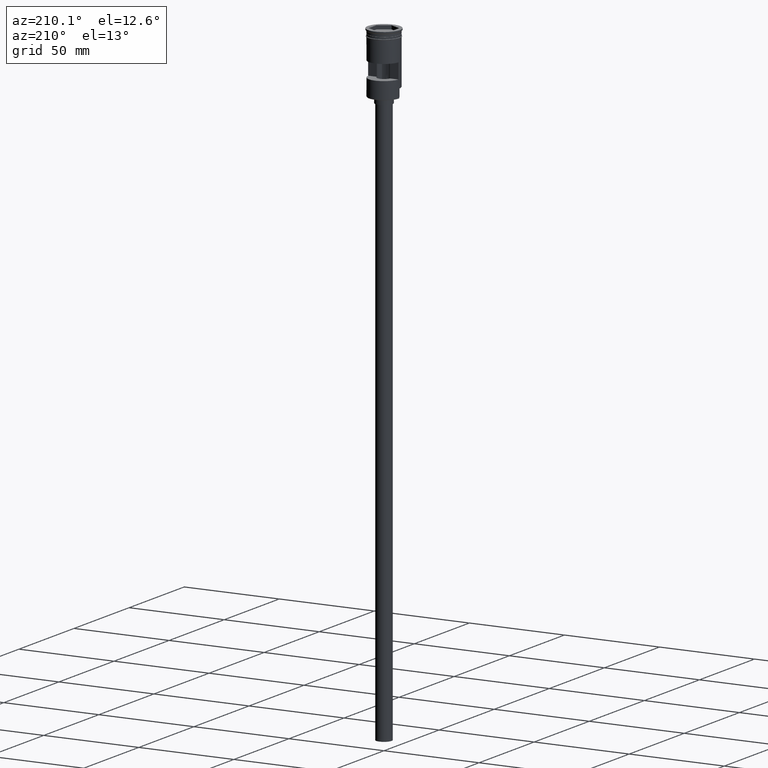
[diagram: clean part render]
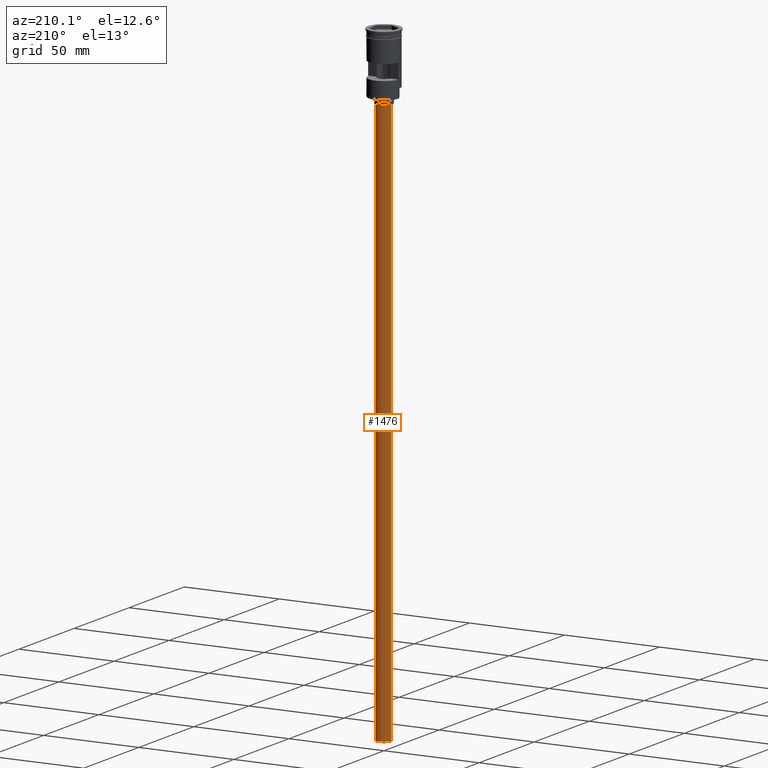
[diagram: same view with one face highlighted and labeled with its STEP entity id]
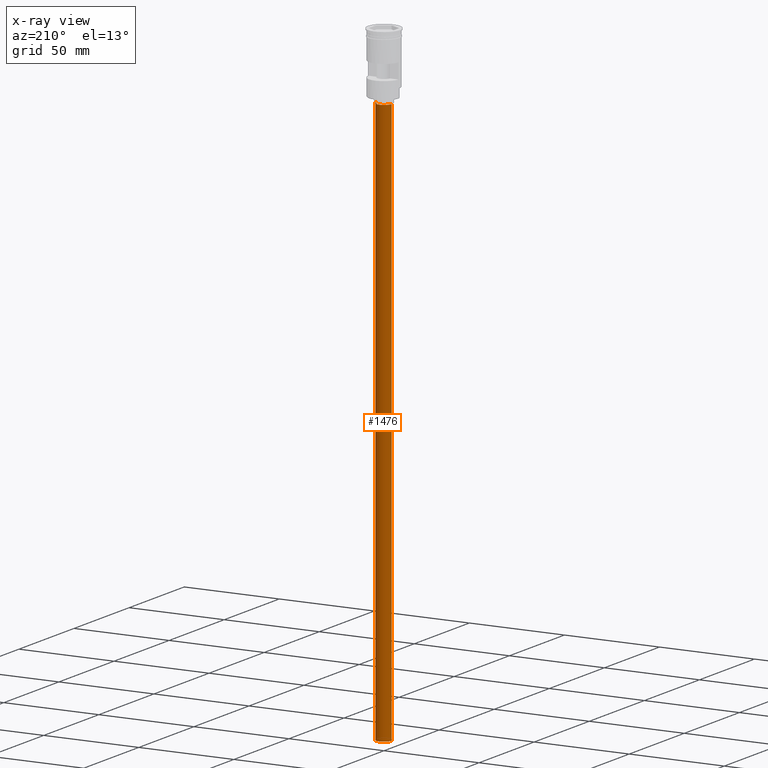
[diagram: x-ray of the same camera — body ghosted, the highlighted face saturated]
A machine part, auxiliary view. The second image highlights one B-rep face of the part: STEP entity #1476.
The next image is the same camera in x-ray: the body ghosted, the highlighted face saturated — about 0% of this face is hidden behind the body in this view.
In plain terms, the highlighted cylindrical surface (edge-blend (fillet) strip) has radius 4 mm, axis along (-0, -0, 1).
Its self-contained STEP definition (entity closure, byte-faithful):
#24 = CARTESIAN_POINT ( 'NONE',  ( 4.000000000000000000, 0.000000000000000000, -35.00000000000000000 ) ) ;
#39 = CARTESIAN_POINT ( 'NONE',  ( 4.000000000000000000, 0.000000000000000000, -331.9999999999999432 ) ) ;
#127 = EDGE_CURVE ( 'NONE', #1157, #928, #890, .T. ) ;
#239 = DIRECTION ( 'NONE',  ( 1.000000000000000000, 0.000000000000000000, 0.000000000000000000 ) ) ;
#261 = CIRCLE ( 'NONE', #680, 4.000000000000000000 ) ;
#295 = ORIENTED_EDGE ( 'NONE', *, *, #1593, .T. ) ;
#324 = DIRECTION ( 'NONE',  ( 0.000000000000000000, 0.000000000000000000, -1.000000000000000000 ) ) ;
#339 = DIRECTION ( 'NONE',  ( -0.000000000000000000, -0.000000000000000000, 1.000000000000000000 ) ) ;
#470 = DIRECTION ( 'NONE',  ( -0.000000000000000000, -0.000000000000000000, 1.000000000000000000 ) ) ;
#523 = EDGE_CURVE ( 'NONE', #785, #772, #261, .T. ) ;
#524 = AXIS2_PLACEMENT_3D ( 'NONE', #1424, #324, #822 ) ;
#597 = ORIENTED_EDGE ( 'NONE', *, *, #127, .F. ) ;
#645 = CARTESIAN_POINT ( 'NONE',  ( -4.000000000000000000, 4.898587196589412829E-16, -331.9999999999999432 ) ) ;
#680 = AXIS2_PLACEMENT_3D ( 'NONE', #810, #1515, #926 ) ;
#701 = ORIENTED_EDGE ( 'NONE', *, *, #523, .T. ) ;
#741 = AXIS2_PLACEMENT_3D ( 'NONE', #1086, #339, #239 ) ;
#746 = LINE ( 'NONE', #645, #952 ) ;
#769 = DIRECTION ( 'NONE',  ( -0.000000000000000000, -0.000000000000000000, 1.000000000000000000 ) ) ;
#772 = VERTEX_POINT ( 'NONE', #24 ) ;
#785 = VERTEX_POINT ( 'NONE', #984 ) ;
#810 = CARTESIAN_POINT ( 'NONE',  ( 0.000000000000000000, 0.000000000000000000, -35.00000000000000000 ) ) ;
#822 = DIRECTION ( 'NONE',  ( -1.000000000000000000, 0.000000000000000000, 0.000000000000000000 ) ) ;
#874 = CARTESIAN_POINT ( 'NONE',  ( -4.000000000000000000, 4.898587196589412829E-16, -331.9999999999999432 ) ) ;
#890 = CIRCLE ( 'NONE', #524, 4.000000000000000000 ) ;
#926 = DIRECTION ( 'NONE',  ( -1.000000000000000000, 0.000000000000000000, 0.000000000000000000 ) ) ;
#928 = VERTEX_POINT ( 'NONE', #39 ) ;
#952 = VECTOR ( 'NONE', #769, 1000.000000000000000 ) ;
#984 = CARTESIAN_POINT ( 'NONE',  ( -4.000000000000000000, 4.898587196589412829E-16, -35.00000000000000000 ) ) ;
#986 = FACE_OUTER_BOUND ( 'NONE', #1310, .T. ) ;
#1086 = CARTESIAN_POINT ( 'NONE',  ( 0.000000000000000000, 0.000000000000000000, -331.9999999999999432 ) ) ;
#1157 = VERTEX_POINT ( 'NONE', #874 ) ;
#1230 = CYLINDRICAL_SURFACE ( 'NONE', #741, 4.000000000000000000 ) ;
#1310 = EDGE_LOOP ( 'NONE', ( #597, #295, #701, #1589 ) ) ;
#1344 = LINE ( 'NONE', #1570, #1463 ) ;
#1424 = CARTESIAN_POINT ( 'NONE',  ( 0.000000000000000000, 0.000000000000000000, -331.9999999999999432 ) ) ;
#1463 = VECTOR ( 'NONE', #470, 1000.000000000000000 ) ;
#1470 = EDGE_CURVE ( 'NONE', #928, #772, #1344, .T. ) ;
#1476 = ADVANCED_FACE ( 'NONE', ( #986 ), #1230, .T. ) ;
#1515 = DIRECTION ( 'NONE',  ( 0.000000000000000000, 0.000000000000000000, -1.000000000000000000 ) ) ;
#1570 = CARTESIAN_POINT ( 'NONE',  ( 4.000000000000000000, 0.000000000000000000, -331.9999999999999432 ) ) ;
#1589 = ORIENTED_EDGE ( 'NONE', *, *, #1470, .F. ) ;
#1593 = EDGE_CURVE ( 'NONE', #1157, #785, #746, .T. ) ;